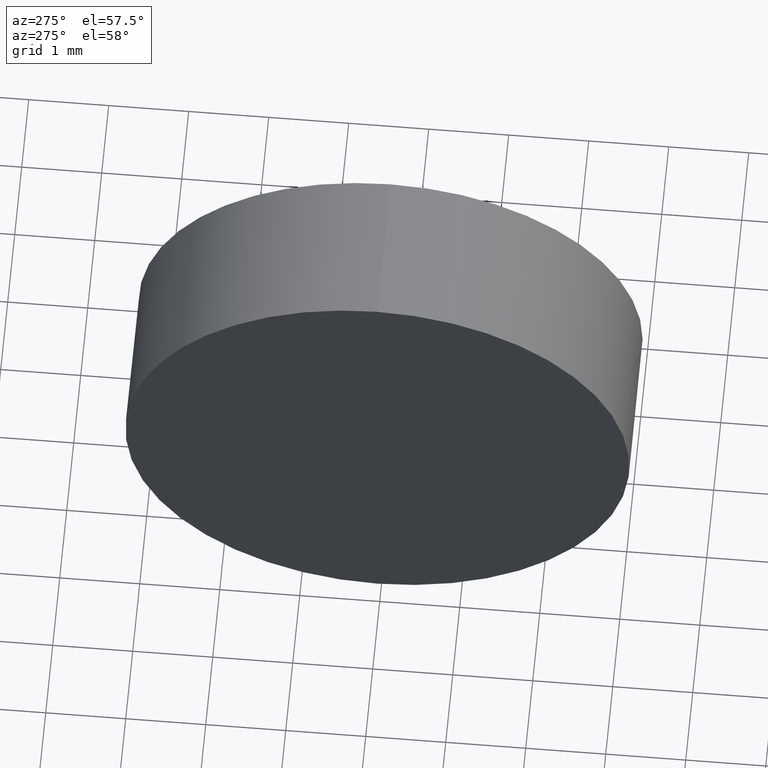
[diagram: clean part render]
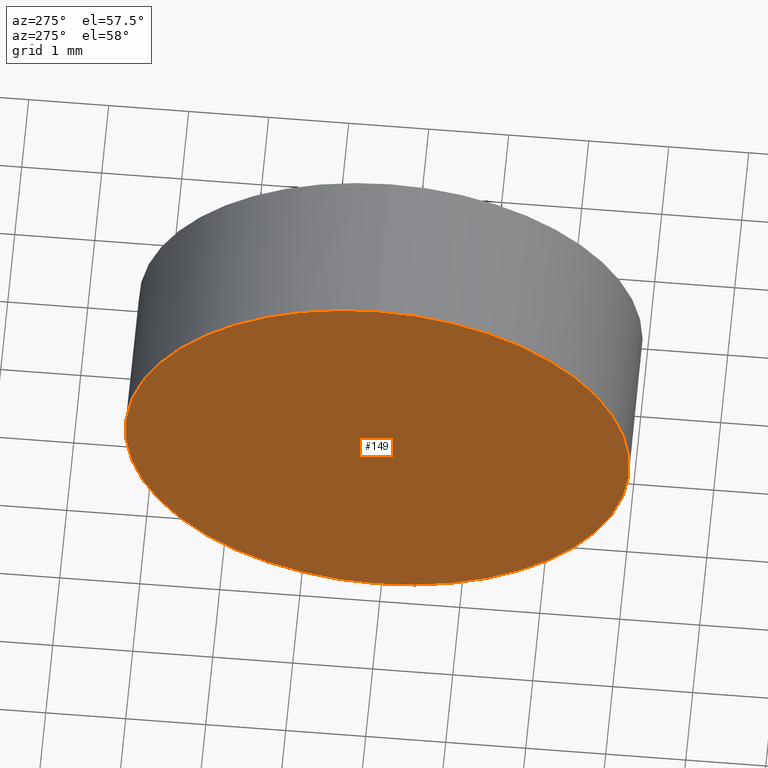
[diagram: same view with one face highlighted and labeled with its STEP entity id]
A machine part, auxiliary view. The second image highlights one B-rep face of the part: STEP entity #149.
In plain terms, the highlighted planar face has unit normal (1, 0, 0).
Its self-contained STEP definition (entity closure, byte-faithful):
#5 = EDGE_LOOP ( 'NONE', ( #165, #154 ) ) ;
#10 = CARTESIAN_POINT ( 'NONE',  ( 22.17218947520228100, 13.04452057459747900, 0.0000000000000000000 ) ) ;
#15 = AXIS2_PLACEMENT_3D ( 'NONE', #44, #173, #45 ) ;
#18 = CIRCLE ( 'NONE', #72, 3.150000000000001700 ) ;
#20 = CARTESIAN_POINT ( 'NONE',  ( 22.17218947520228100, 13.04452057459747900, -3.150000000000001700 ) ) ;
#29 = FACE_OUTER_BOUND ( 'NONE', #5, .T. ) ;
#30 = CIRCLE ( 'NONE', #15, 3.150000000000001700 ) ;
#31 = DIRECTION ( 'NONE',  ( -1.000000000000000000, -0.0000000000000000000, -0.0000000000000000000 ) ) ;
#34 = EDGE_CURVE ( 'NONE', #110, #85, #30, .T. ) ;
#44 = CARTESIAN_POINT ( 'NONE',  ( 22.17218947520228100, 13.04452057459747900, 0.0000000000000000000 ) ) ;
#45 = DIRECTION ( 'NONE',  ( 0.0000000000000000000, 0.0000000000000000000, 1.000000000000000000 ) ) ;
#46 = PLANE ( 'NONE',  #64 ) ;
#52 = EDGE_CURVE ( 'NONE', #85, #110, #18, .T. ) ;
#64 = AXIS2_PLACEMENT_3D ( 'NONE', #10, #186, #163 ) ;
#72 = AXIS2_PLACEMENT_3D ( 'NONE', #119, #31, #91 ) ;
#85 = VERTEX_POINT ( 'NONE', #20 ) ;
#88 = CARTESIAN_POINT ( 'NONE',  ( 22.17218947520228100, 13.04452057459747900, 3.150000000000001700 ) ) ;
#91 = DIRECTION ( 'NONE',  ( 0.0000000000000000000, 0.0000000000000000000, 1.000000000000000000 ) ) ;
#110 = VERTEX_POINT ( 'NONE', #88 ) ;
#119 = CARTESIAN_POINT ( 'NONE',  ( 22.17218947520228100, 13.04452057459747900, 0.0000000000000000000 ) ) ;
#149 = ADVANCED_FACE ( 'NONE', ( #29 ), #46, .F. ) ;
#154 = ORIENTED_EDGE ( 'NONE', *, *, #52, .T. ) ;
#163 = DIRECTION ( 'NONE',  ( 0.0000000000000000000, 0.0000000000000000000, -1.000000000000000000 ) ) ;
#165 = ORIENTED_EDGE ( 'NONE', *, *, #34, .T. ) ;
#173 = DIRECTION ( 'NONE',  ( -1.000000000000000000, -0.0000000000000000000, -0.0000000000000000000 ) ) ;
#186 = DIRECTION ( 'NONE',  ( 1.000000000000000000, 0.0000000000000000000, 0.0000000000000000000 ) ) ;